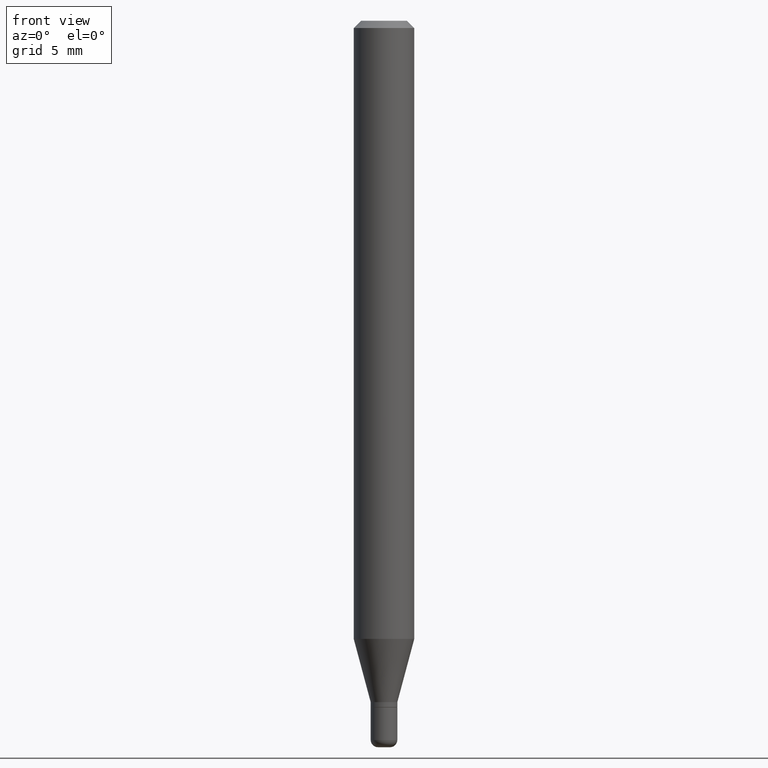
[diagram: clean part render]
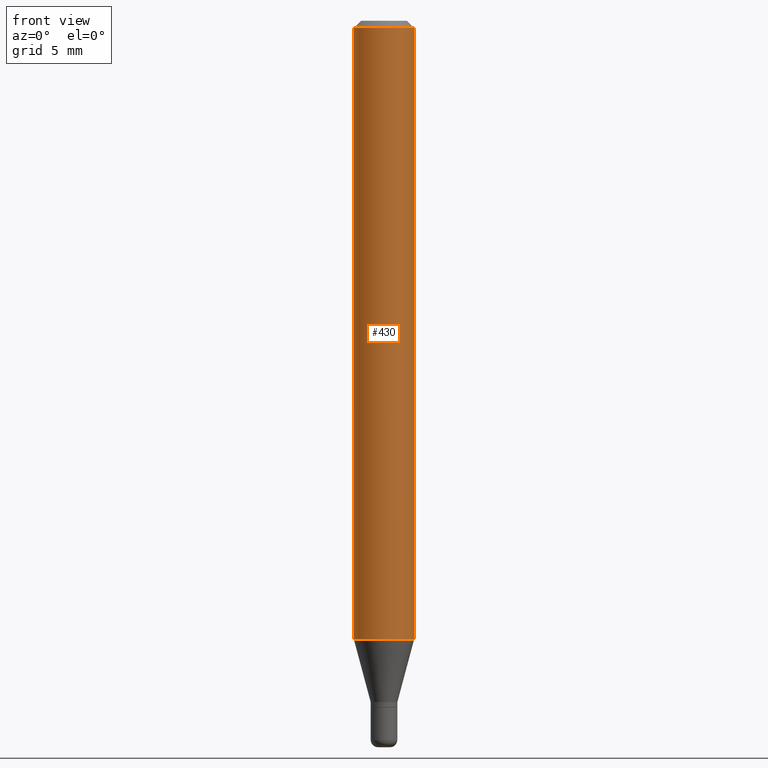
[diagram: same view with one face highlighted and labeled with its STEP entity id]
A machine part, front view. The second image highlights one B-rep face of the part: STEP entity #430.
In plain terms, the highlighted cylindrical surface (edge-blend (fillet) strip) has radius 1.5875 mm, axis along (-0, 0, 1).
Its self-contained STEP definition (entity closure, byte-faithful):
#5 = CYLINDRICAL_SURFACE ( 'NONE', #328, 0.06250000000000000000 ) ;
#24 = DIRECTION ( 'NONE',  ( 1.000000000000000000, -6.982962677686262766E-15, 0.000000000000000000 ) ) ;
#26 = ORIENTED_EDGE ( 'NONE', *, *, #101, .F. ) ;
#46 = CIRCLE ( 'NONE', #488, 0.06250000000000000000 ) ;
#51 = DIRECTION ( 'NONE',  ( -2.445468806185136597E-29, 3.491481338843145583E-15, 1.000000000000000000 ) ) ;
#52 = CARTESIAN_POINT ( 'NONE',  ( -0.06250000000000000000, -1.810322271438192615E-15, -0.01499999999999970281 ) ) ;
#54 = ORIENTED_EDGE ( 'NONE', *, *, #395, .F. ) ;
#62 = VERTEX_POINT ( 'NONE', #272 ) ;
#77 = CARTESIAN_POINT ( 'NONE',  ( -0.06250000000000000000, 4.440892098500626162E-16, -3.074334431409316114E-30 ) ) ;
#101 = EDGE_CURVE ( 'NONE', #62, #302, #164, .T. ) ;
#121 = AXIS2_PLACEMENT_3D ( 'NONE', #138, #51, #284 ) ;
#134 = LINE ( 'NONE', #176, #384 ) ;
#138 = CARTESIAN_POINT ( 'NONE',  ( 3.668203209277632395E-31, -5.237222008264614861E-17, -0.01499999999999970281 ) ) ;
#140 = VECTOR ( 'NONE', #241, 39.37007874015748143 ) ;
#164 = LINE ( 'NONE', #77, #140 ) ;
#167 = DIRECTION ( 'NONE',  ( -2.445468806185136597E-29, 3.491481338843145583E-15, 1.000000000000000000 ) ) ;
#172 = FACE_OUTER_BOUND ( 'NONE', #506, .T. ) ;
#176 = CARTESIAN_POINT ( 'NONE',  ( 0.06250000000000000000, -4.364351673553916694E-16, 3.047610484872459871E-30 ) ) ;
#196 = ORIENTED_EDGE ( 'NONE', *, *, #396, .T. ) ;
#205 = CARTESIAN_POINT ( 'NONE',  ( 3.121343126147216904E-29, -4.456450742493864567E-15, -1.276378221735089635 ) ) ;
#241 = DIRECTION ( 'NONE',  ( -2.445468806185136877E-29, 3.491481338843145188E-15, 1.000000000000000000 ) ) ;
#269 = DIRECTION ( 'NONE',  ( 1.000000000000000000, -6.982962677686266711E-15, 4.876176775795935793E-29 ) ) ;
#272 = CARTESIAN_POINT ( 'NONE',  ( -0.06250000000000000000, -4.012361532643800373E-15, -1.276378221735089635 ) ) ;
#284 = DIRECTION ( 'NONE',  ( 1.000000000000000000, -6.982962677686266711E-15, 0.000000000000000000 ) ) ;
#302 = VERTEX_POINT ( 'NONE', #52 ) ;
#322 = DIRECTION ( 'NONE',  ( -2.445468806185136877E-29, 3.491481338843145188E-15, 1.000000000000000000 ) ) ;
#328 = AXIS2_PLACEMENT_3D ( 'NONE', #482, #167, #269 ) ;
#353 = CARTESIAN_POINT ( 'NONE',  ( 0.06250000000000000000, -4.892885909849255447E-15, -1.276378221735089635 ) ) ;
#359 = CIRCLE ( 'NONE', #121, 0.06250000000000000000 ) ;
#370 = EDGE_CURVE ( 'NONE', #460, #426, #134, .T. ) ;
#380 = ORIENTED_EDGE ( 'NONE', *, *, #370, .T. ) ;
#384 = VECTOR ( 'NONE', #322, 39.37007874015748143 ) ;
#395 = EDGE_CURVE ( 'NONE', #302, #426, #359, .T. ) ;
#396 = EDGE_CURVE ( 'NONE', #62, #460, #46, .T. ) ;
#418 = DIRECTION ( 'NONE',  ( -2.445468806185136597E-29, 3.491481338843145583E-15, 1.000000000000000000 ) ) ;
#426 = VERTEX_POINT ( 'NONE', #478 ) ;
#430 = ADVANCED_FACE ( 'NONE', ( #172 ), #5, .T. ) ;
#460 = VERTEX_POINT ( 'NONE', #353 ) ;
#478 = CARTESIAN_POINT ( 'NONE',  ( 0.06250000000000000000, -4.888073874380378612E-16, -0.01499999999999970281 ) ) ;
#482 = CARTESIAN_POINT ( 'NONE',  ( 0.000000000000000000, 0.000000000000000000, 0.000000000000000000 ) ) ;
#488 = AXIS2_PLACEMENT_3D ( 'NONE', #205, #418, #24 ) ;
#506 = EDGE_LOOP ( 'NONE', ( #26, #196, #380, #54 ) ) ;